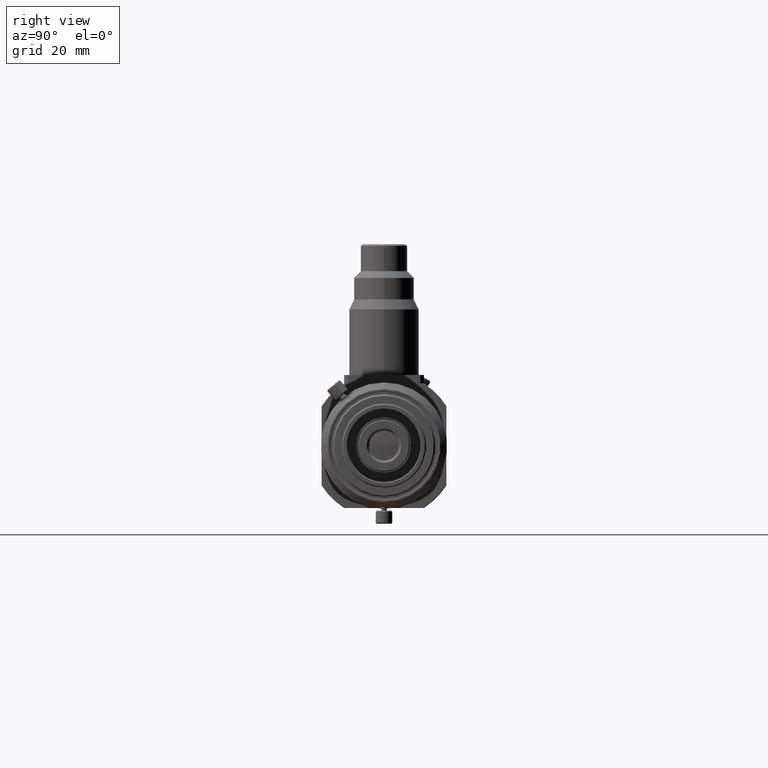
[diagram: clean part render]
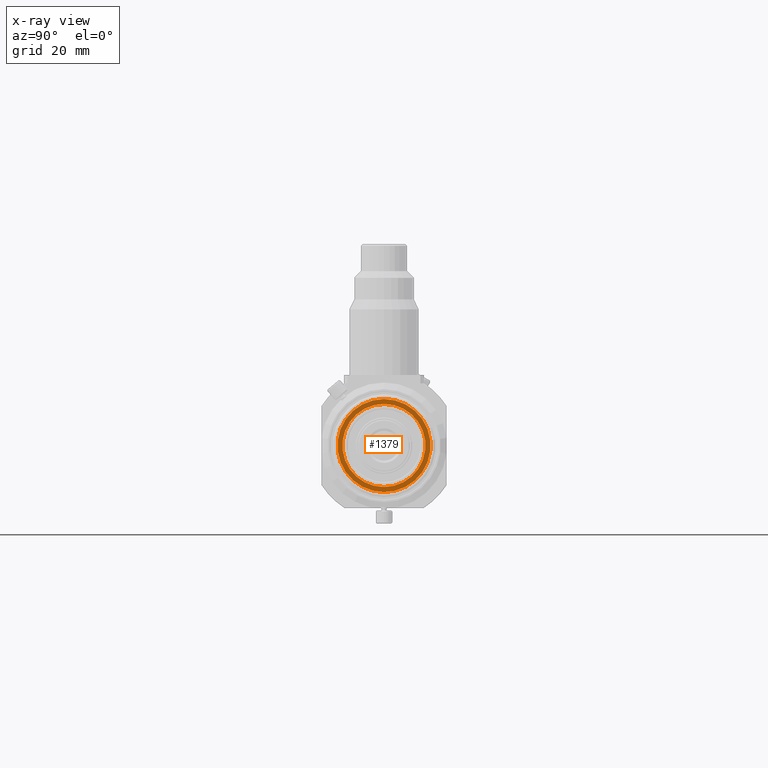
[diagram: x-ray — body ghosted, one internal face saturated and labeled with its STEP entity id]
A machine part, right view, then the same camera in x-ray: the body is ghosted and one INTERNAL B-rep face — a face not visible from any outside direction — is saturated and labeled: STEP entity #1379.
In plain terms, the highlighted planar face has unit normal (-1, 0, 0).
Its self-contained STEP definition (entity closure, byte-faithful):
#6 = VERTEX_POINT ( 'NONE', #1245 ) ;
#21 = VERTEX_POINT ( 'NONE', #1260 ) ;
#29 = VERTEX_POINT ( 'NONE', #1265 ) ;
#74 = VERTEX_POINT ( 'NONE', #1290 ) ;
#873 = CARTESIAN_POINT ( 'NONE',  ( -47.77219436237683000, 0.0000000000000000000, 0.0000000000000000000 ) ) ;
#874 = DIRECTION ( 'NONE',  ( 1.000000000000000000, -0.0000000000000000000, -0.0000000000000000000 ) ) ;
#875 = DIRECTION ( 'NONE',  ( 0.0000000000000000000, 0.0000000000000000000, -1.000000000000000000 ) ) ;
#876 = CARTESIAN_POINT ( 'NONE',  ( -47.77219436237683000, 0.0000000000000000000, 0.0000000000000000000 ) ) ;
#877 = DIRECTION ( 'NONE',  ( 1.000000000000000000, -0.0000000000000000000, -0.0000000000000000000 ) ) ;
#878 = DIRECTION ( 'NONE',  ( 0.0000000000000000000, 0.0000000000000000000, -1.000000000000000000 ) ) ;
#1245 = CARTESIAN_POINT ( 'NONE',  ( -47.77219436237683000, 0.0000000000000000000, 12.50000000000014200 ) ) ;
#1260 = CARTESIAN_POINT ( 'NONE',  ( -47.77219436237683000, 1.530808498934208900E-015, -12.50000000000014200 ) ) ;
#1265 = CARTESIAN_POINT ( 'NONE',  ( -47.77219436237683000, 0.0000000000000000000, -14.00000000000014200 ) ) ;
#1290 = CARTESIAN_POINT ( 'NONE',  ( -47.77219436237683000, 1.714505518806311800E-015, 14.00000000000014200 ) ) ;
#1379 = ADVANCED_FACE ( 'NONE', ( #5632, #5625 ), #1604, .T. ) ;
#1417 = CARTESIAN_POINT ( 'NONE',  ( -47.77219436237683000, 12.50000000000014200, 0.0000000000000000000 ) ) ;
#1530 = DIRECTION ( 'NONE',  ( -1.000000000000000000, 0.0000000000000000000, 0.0000000000000000000 ) ) ;
#1541 = DIRECTION ( 'NONE',  ( 0.0000000000000000000, 0.0000000000000000000, 1.000000000000000000 ) ) ;
#1604 = PLANE ( 'NONE',  #4587 ) ;
#1919 = EDGE_CURVE ( 'NONE', #29, #74, #6681, .T. ) ;
#1920 = EDGE_CURVE ( 'NONE', #21, #6, #6682, .T. ) ;
#2358 = CARTESIAN_POINT ( 'NONE',  ( -47.77219436237683000, 0.0000000000000000000, 0.0000000000000000000 ) ) ;
#2359 = DIRECTION ( 'NONE',  ( 1.000000000000000000, -0.0000000000000000000, -0.0000000000000000000 ) ) ;
#2360 = DIRECTION ( 'NONE',  ( 0.0000000000000000000, 0.0000000000000000000, -1.000000000000000000 ) ) ;
#2610 = CARTESIAN_POINT ( 'NONE',  ( -47.77219436237683000, 0.0000000000000000000, 0.0000000000000000000 ) ) ;
#2611 = DIRECTION ( 'NONE',  ( 1.000000000000000000, -0.0000000000000000000, -0.0000000000000000000 ) ) ;
#2612 = DIRECTION ( 'NONE',  ( 0.0000000000000000000, 0.0000000000000000000, -1.000000000000000000 ) ) ;
#3423 = EDGE_CURVE ( 'NONE', #6, #21, #6875, .T. ) ;
#3518 = EDGE_CURVE ( 'NONE', #74, #29, #7019, .T. ) ;
#4089 = EDGE_LOOP ( 'NONE', ( #4902, #4903 ) ) ;
#4096 = EDGE_LOOP ( 'NONE', ( #4904, #4905 ) ) ;
#4587 = AXIS2_PLACEMENT_3D ( 'NONE', #1417, #1530, #1541 ) ;
#4902 = ORIENTED_EDGE ( 'NONE', *, *, #3423, .T. ) ;
#4903 = ORIENTED_EDGE ( 'NONE', *, *, #1920, .T. ) ;
#4904 = ORIENTED_EDGE ( 'NONE', *, *, #1919, .F. ) ;
#4905 = ORIENTED_EDGE ( 'NONE', *, *, #3518, .F. ) ;
#5625 = FACE_OUTER_BOUND ( 'NONE', #4096, .T. ) ;
#5632 = FACE_BOUND ( 'NONE', #4089, .T. ) ;
#6681 = CIRCLE ( 'NONE', #7216, 14.00000000000014200 ) ;
#6682 = CIRCLE ( 'NONE', #7217, 12.50000000000014200 ) ;
#6875 = CIRCLE ( 'NONE', #7300, 12.50000000000014200 ) ;
#7019 = CIRCLE ( 'NONE', #7344, 14.00000000000014200 ) ;
#7216 = AXIS2_PLACEMENT_3D ( 'NONE', #873, #874, #875 ) ;
#7217 = AXIS2_PLACEMENT_3D ( 'NONE', #876, #877, #878 ) ;
#7300 = AXIS2_PLACEMENT_3D ( 'NONE', #2358, #2359, #2360 ) ;
#7344 = AXIS2_PLACEMENT_3D ( 'NONE', #2610, #2611, #2612 ) ;